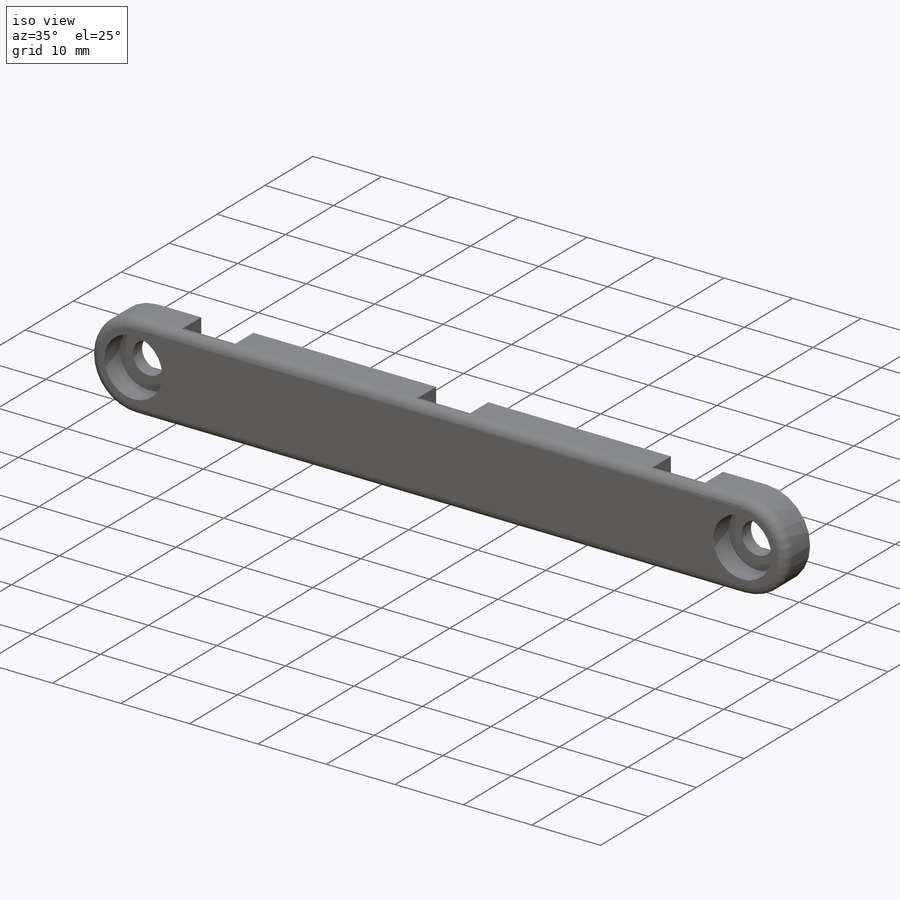
[diagram: iso view]
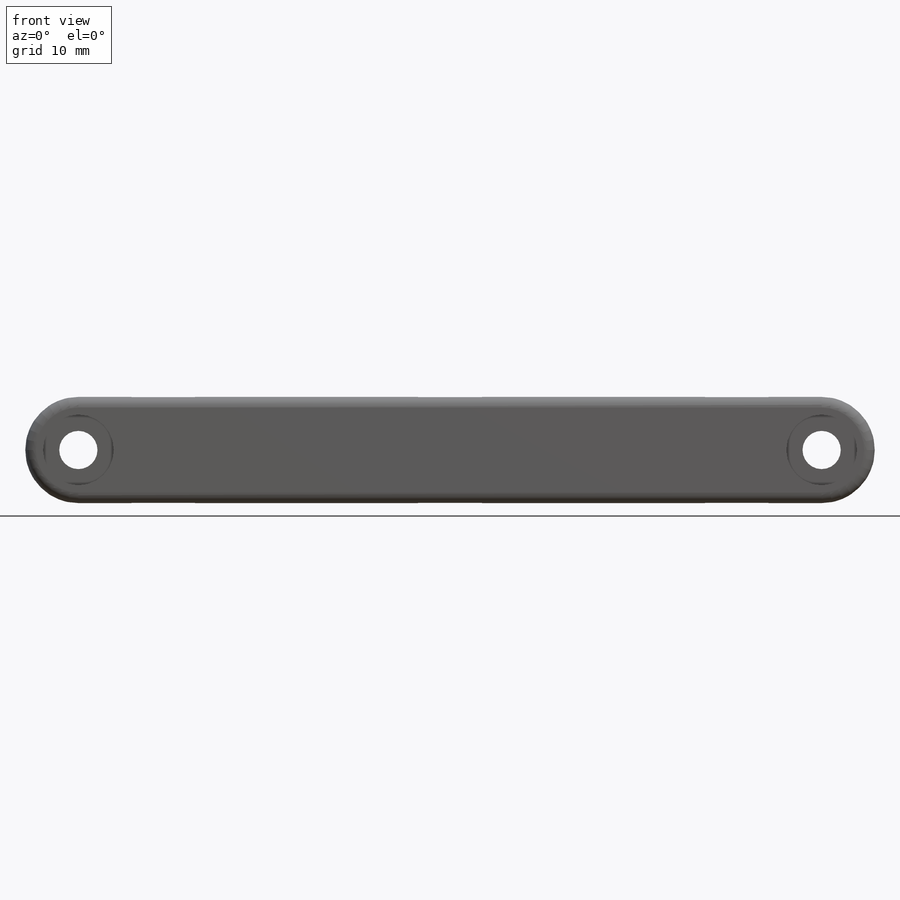
[diagram: front view]
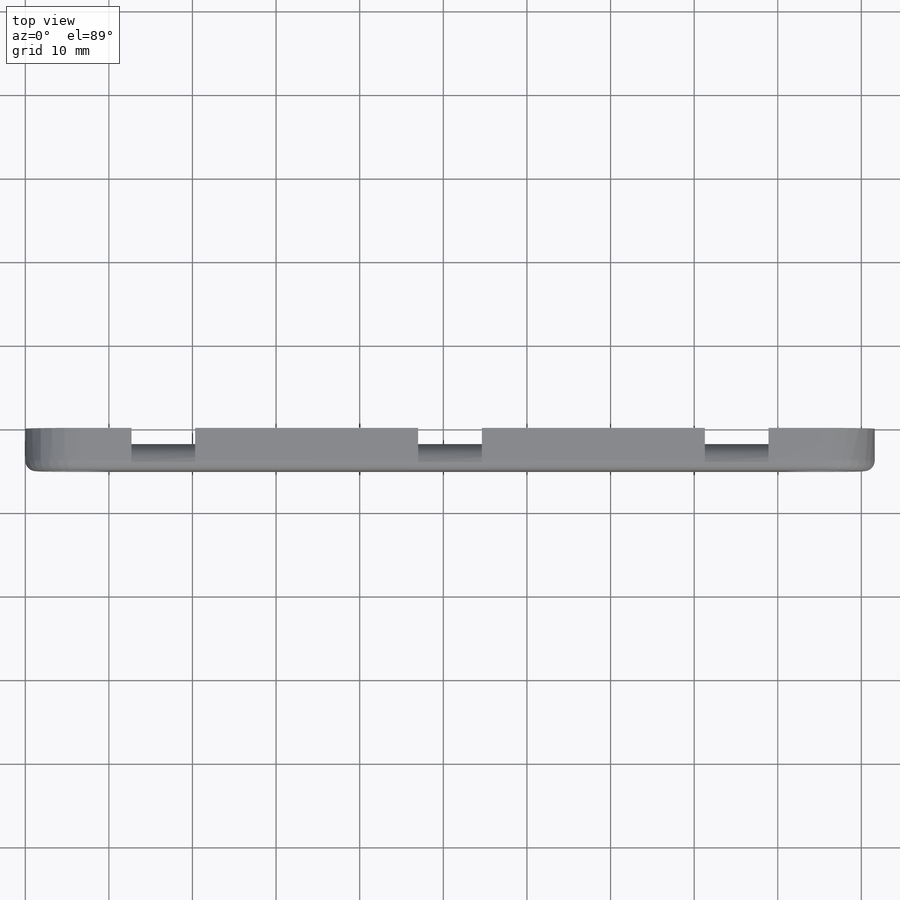
[diagram: top view]
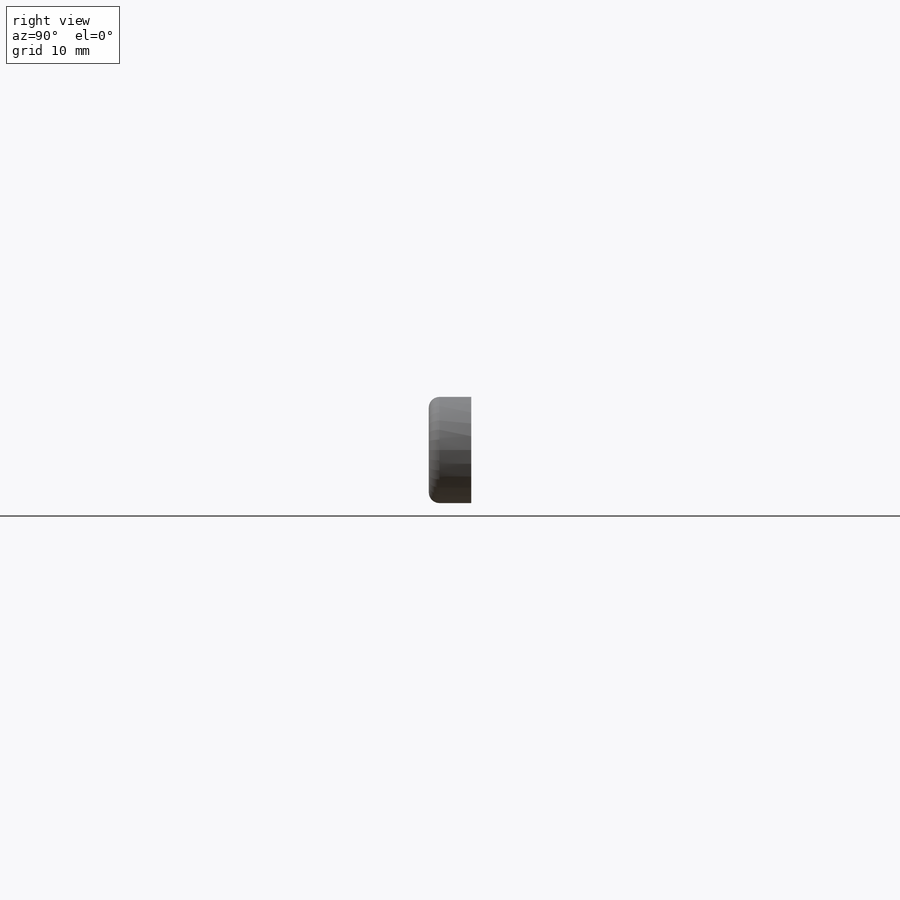
[diagram: right view]
SOLIDWORKS PART (.sldprt)
format: sldprt  version: not decoded by parser v0  size: 252,928 bytes
history: native  units: mm
features: sketch x3, fillet x3, extrude x2, material x1, cut_extrude x1 (+12 scaffold rows collapsed)
feature tree (22):
  scaffold x12  (default folders/planes/origin — collapsed)
  material  "Material <not specified>"
  sketch  "Sketch1"  dims[D3=4.572mm D4=8.4582mm D1=101.6mm D2=12.7mm D5=88.9mm]
  extrude  "Boss-Extrude1"  Depth=5.08mm
  extrude  "Boss-Extrude2"  [1 undecoded]
  sketch  "Sketch1<3>"  dims[D1=1.905mm]
  sketch  "Sketch2"  dims[D1=7.62mm D2=12.7mm D3=12.7mm D4=50.8mm]
  cut_extrude  "Cut-Extrude1"  Depth=1.905mm
  fillet  "Fillet1"  Radius=6.35mm
  fillet  "Fillet2"  Radius=2.54mm
  fillet  "Fillet3"  Radius=1.27mm
decode coverage: 8 of 9 modeling features carry decoded parameters
note: 1 parameter value undecoded
note: suppression state not decoded; provenance and decode notes live in map.json
